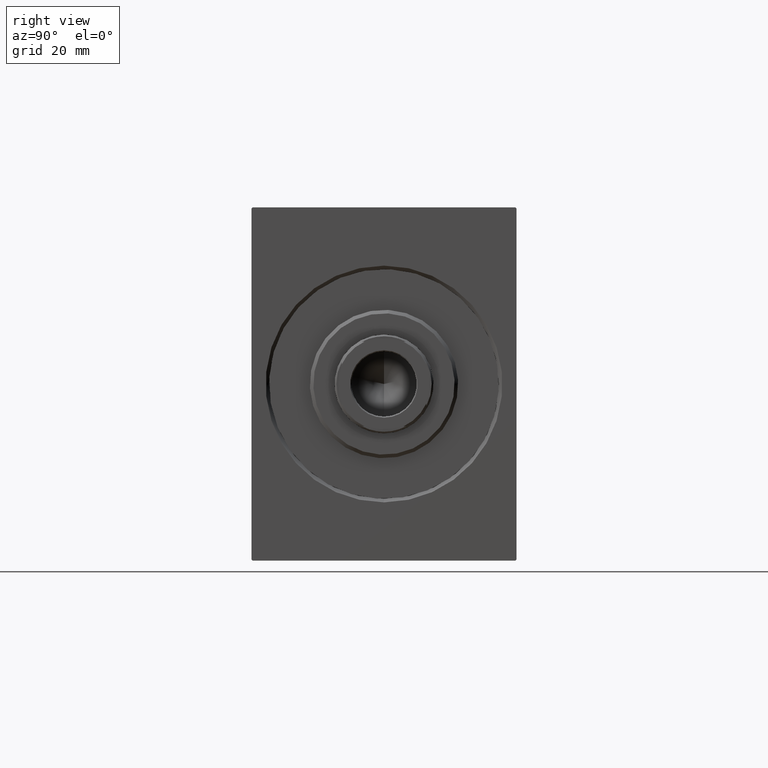
[diagram: clean part render]
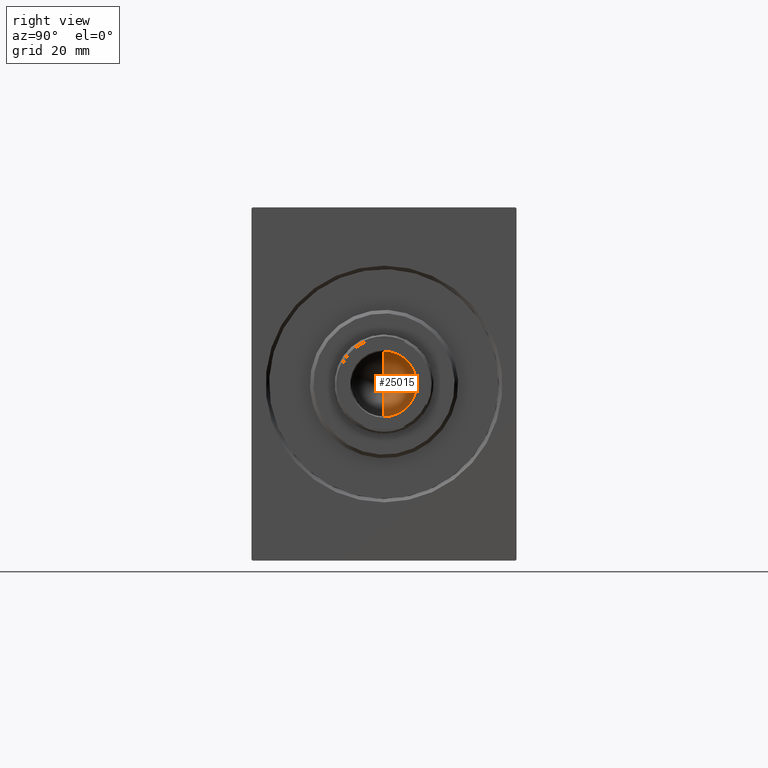
[diagram: same view with one face highlighted and labeled with its STEP entity id]
A machine part, right view. The second image highlights one B-rep face of the part: STEP entity #25015.
In plain terms, the highlighted conical surface has half-angle 59 deg.
Its self-contained STEP definition (entity closure, byte-faithful):
#1046 = AXIS2_PLACEMENT_3D ( 'NONE', #29540, #40185, #43079 ) ;
#1750 = EDGE_LOOP ( 'NONE', ( #18810, #10945, #12838 ) ) ;
#1755 = VERTEX_POINT ( 'NONE', #39514 ) ;
#1890 = VECTOR ( 'NONE', #21185, 1000.000000000000000 ) ;
#3054 = EDGE_CURVE ( 'NONE', #12015, #9095, #14658, .T. ) ;
#8460 = DIRECTION ( 'NONE',  ( 0.8571673007021118895, 0.000000000000000000, 0.5150380749100549327 ) ) ;
#9095 = VERTEX_POINT ( 'NONE', #41229 ) ;
#10945 = ORIENTED_EDGE ( 'NONE', *, *, #3054, .T. ) ;
#12015 = VERTEX_POINT ( 'NONE', #29922 ) ;
#12838 = ORIENTED_EDGE ( 'NONE', *, *, #13682, .T. ) ;
#13682 = EDGE_CURVE ( 'NONE', #9095, #1755, #31512, .T. ) ;
#14658 = LINE ( 'NONE', #18417, #37633 ) ;
#18071 = EDGE_CURVE ( 'NONE', #12015, #1755, #18285, .T. ) ;
#18285 = LINE ( 'NONE', #18510, #1890 ) ;
#18417 = CARTESIAN_POINT ( 'NONE',  ( 9.249999999999994671, 0.000000000000000000, 126.0000000000000284 ) ) ;
#18510 = CARTESIAN_POINT ( 'NONE',  ( -9.249999999999994671, 1.132798289211300909E-15, 126.0000000000000284 ) ) ;
#18810 = ORIENTED_EDGE ( 'NONE', *, *, #18071, .F. ) ;
#19199 = FACE_OUTER_BOUND ( 'NONE', #1750, .T. ) ;
#21185 = DIRECTION ( 'NONE',  ( -0.8571673007021118895, 1.049727191138618079E-16, 0.5150380749100549327 ) ) ;
#23224 = DIRECTION ( 'NONE',  ( 1.000000000000000000, 0.000000000000000000, 0.000000000000000000 ) ) ;
#23252 = CONICAL_SURFACE ( 'NONE', #26062, 9.249999999999994671, 1.029744258676653645 ) ;
#25015 = ADVANCED_FACE ( 'NONE', ( #19199 ), #23252, .F. ) ;
#26062 = AXIS2_PLACEMENT_3D ( 'NONE', #36294, #40288, #23224 ) ;
#29540 = CARTESIAN_POINT ( 'NONE',  ( 0.000000000000000000, 0.000000000000000000, 126.0000000000000284 ) ) ;
#29922 = CARTESIAN_POINT ( 'NONE',  ( -7.691244471156305908E-15, 0.000000000000000000, 120.4420392739950927 ) ) ;
#31512 = CIRCLE ( 'NONE', #1046, 9.249999999999994671 ) ;
#36294 = CARTESIAN_POINT ( 'NONE',  ( 0.000000000000000000, 0.000000000000000000, 126.0000000000000284 ) ) ;
#37633 = VECTOR ( 'NONE', #8460, 1000.000000000000000 ) ;
#39514 = CARTESIAN_POINT ( 'NONE',  ( -9.249999999999994671, 1.132798289211300909E-15, 126.0000000000000284 ) ) ;
#40185 = DIRECTION ( 'NONE',  ( -0.000000000000000000, -0.000000000000000000, 1.000000000000000000 ) ) ;
#40288 = DIRECTION ( 'NONE',  ( -0.000000000000000000, -0.000000000000000000, 1.000000000000000000 ) ) ;
#41229 = CARTESIAN_POINT ( 'NONE',  ( 9.249999999999994671, 0.000000000000000000, 126.0000000000000284 ) ) ;
#43079 = DIRECTION ( 'NONE',  ( 1.000000000000000000, 0.000000000000000000, 0.000000000000000000 ) ) ;